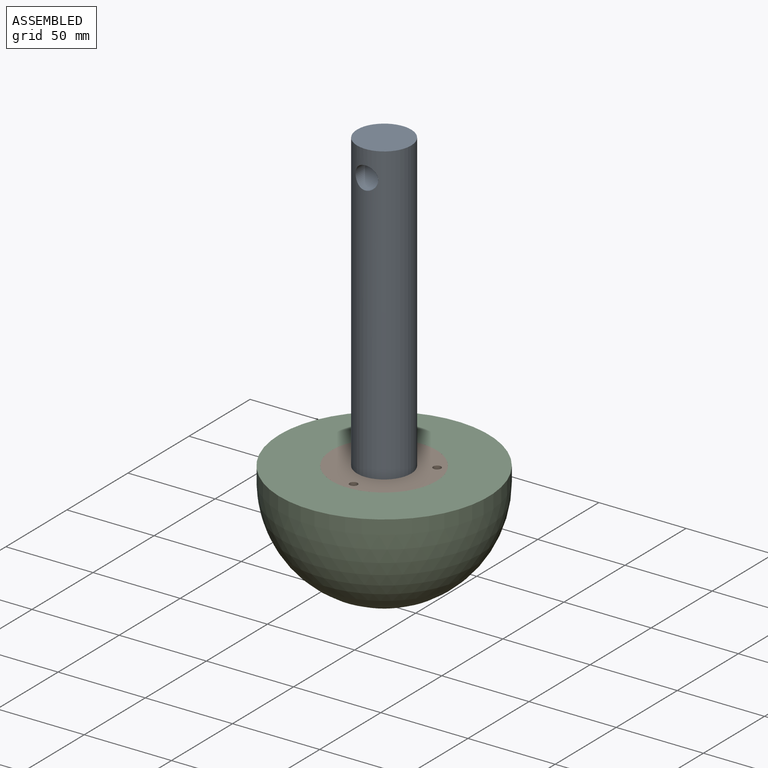
[diagram: assembled view]
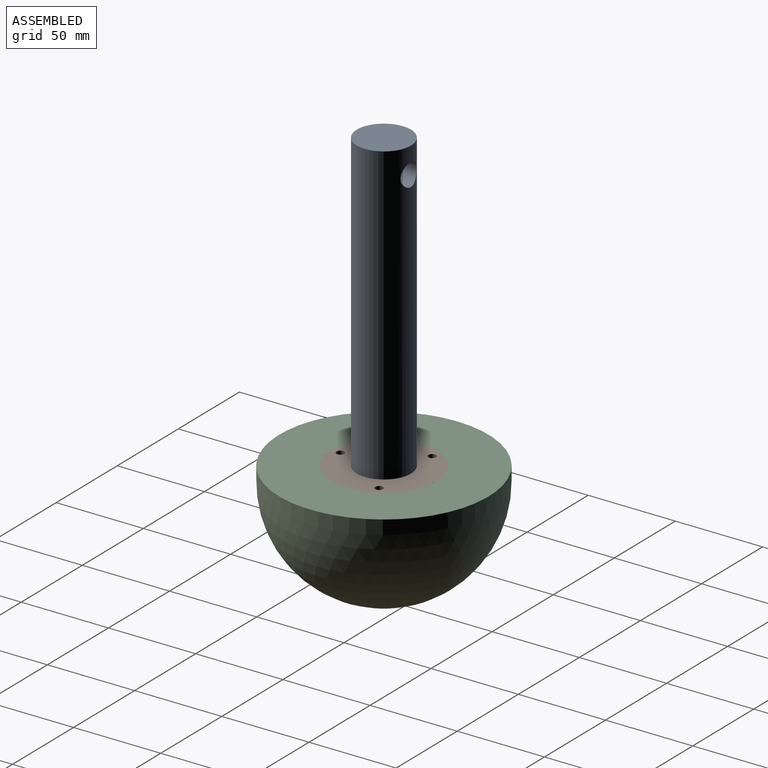
[diagram: assembled view, second angle]
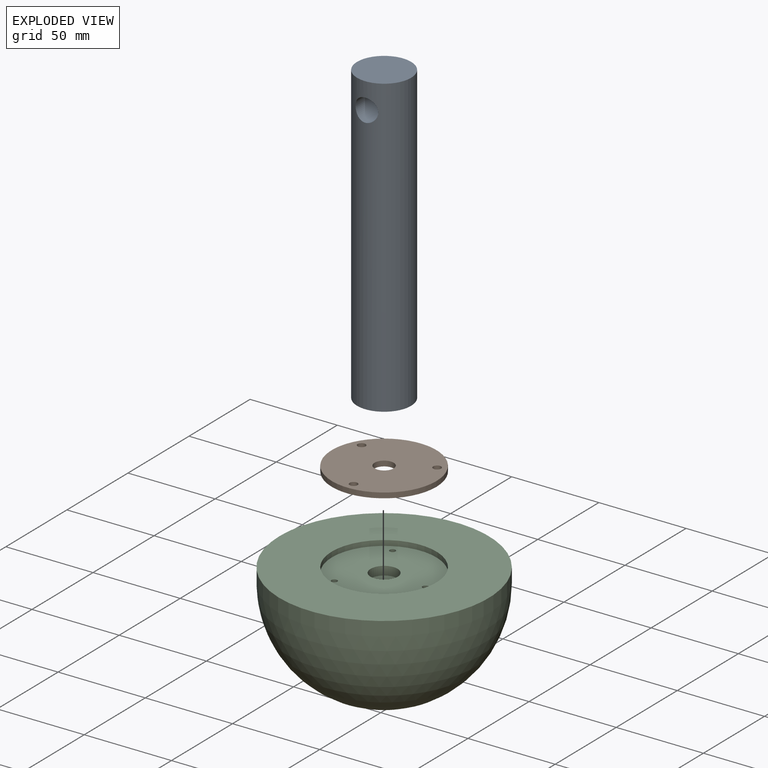
[diagram: exploded view]
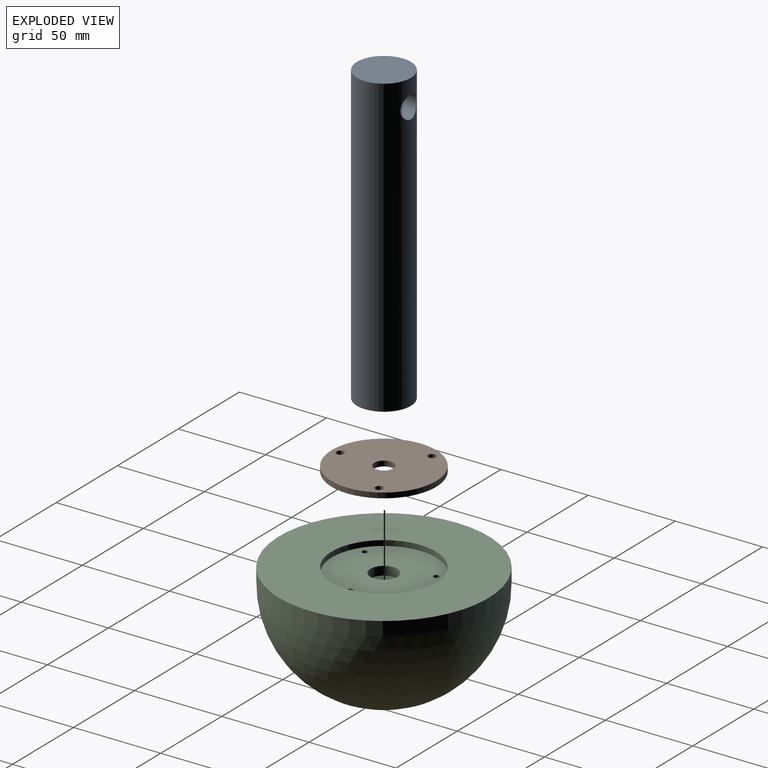
[diagram: exploded view, second angle]
ASSEMBLY  parts=3 mates=2
PART A: 6 faces, bbox 31x31x170 mm
  f0: cylinder r=15.5mm len=170mm, axis (0,0,-1), area 16284.1mm2, adj f1,f2,f3
  f1: plane 31x31mm, normal (0,0,1), area 698mm2, adj f0,f5
  f2: plane 31x31mm, normal (0,0,-1), area 754.8mm2, adj f0
  f3: cylinder r=6.5mm len=31mm, axis (0,-1,0), area 1208.4mm2, adj f0
  f4: cone r=0mm half-angle=59deg, axis (0,0,1), area 66.2mm2, adj f5
  f5: cylinder r=4.25mm len=34.5mm, axis (0,0,1), area 921.3mm2, adj f1,f4
PART B: 7 faces, bbox 60x60x3 mm
  f0: cylinder r=30mm len=60mm, axis (0,0,-1), area 565.5mm2, adj f1,f2
  f1: plane 60x60mm, normal (0,0,1), area 2684.7mm2, adj f0,f3,f4,f5,f6
  f2: plane 60x60mm, normal (0,0,-1), area 2684.7mm2, adj f0,f3,f4,f5,f6
  f3: cylinder r=5.5mm len=11mm, axis (0,0,1), area 103.7mm2, adj f1,f2
  f4: cylinder r=2.25mm len=4.5mm, axis (0,0,1), area 42.4mm2, adj f1,f2
  f5: cylinder r=2.25mm len=4.5mm, axis (0,0,1), area 42.4mm2, adj f1,f2
  f6: cylinder r=2.25mm len=4.5mm, axis (0,0,1), area 42.4mm2, adj f1,f2
PART C: 13 faces, bbox 120x120x68 mm
  f0: sphere r=60mm, area 22619.5mm2, adj f1
  f1: cylinder r=60mm len=120mm, axis (0,0,1), area 3015.9mm2, adj f0,f2
  f2: plane 120x120mm, normal (0,0,-1), area 8482.3mm2, adj f1,f3
  f3: cylinder r=30mm len=60mm, axis (0,0,-1), area 565.5mm2, adj f2,f4
  f4: plane 60x60mm, normal (0,0,-1), area 2613.1mm2, adj f3,f6,f8,f10,f12
  f5: cone r=0mm half-angle=59deg, axis (0,0,-1), area 10mm2, adj f6
  f6: cylinder r=1.65mm len=29.1mm, axis (0,0,-1), area 301.7mm2, adj f4,f5
  f7: cone r=0mm half-angle=59deg, axis (0,0,-1), area 10mm2, adj f8
  f8: cylinder r=1.65mm len=29.1mm, axis (0,0,-1), area 301.7mm2, adj f4,f7
  f9: cone r=0mm half-angle=59deg, axis (0,0,-1), area 10mm2, adj f10
  f10: cylinder r=1.65mm len=29.1mm, axis (0,0,-1), area 301.7mm2, adj f4,f9
  f11: cone r=0mm half-angle=59deg, axis (0,0,-1), area 220.1mm2, adj f12
  f12: cylinder r=7.75mm len=15.5mm, axis (0,0,-1), area 243.5mm2, adj f4,f11
PLACE A rot(axis=(1,0,0),180deg) t=(47.55,6.26,240.01)mm
PLACE B t=(47.55,6.26,67.01)mm
PLACE C rot(axis=(0,1,0),180deg) t=(47.55,6.26,62.01)mm
MATE revolute A.f0 <-> B.f0  axis (0,0,-1) through (47.55,6.26,70.01)mm
MATE revolute C.f3 <-> B.f0  axis (0,0,1) through (47.55,6.26,67.01)mm
